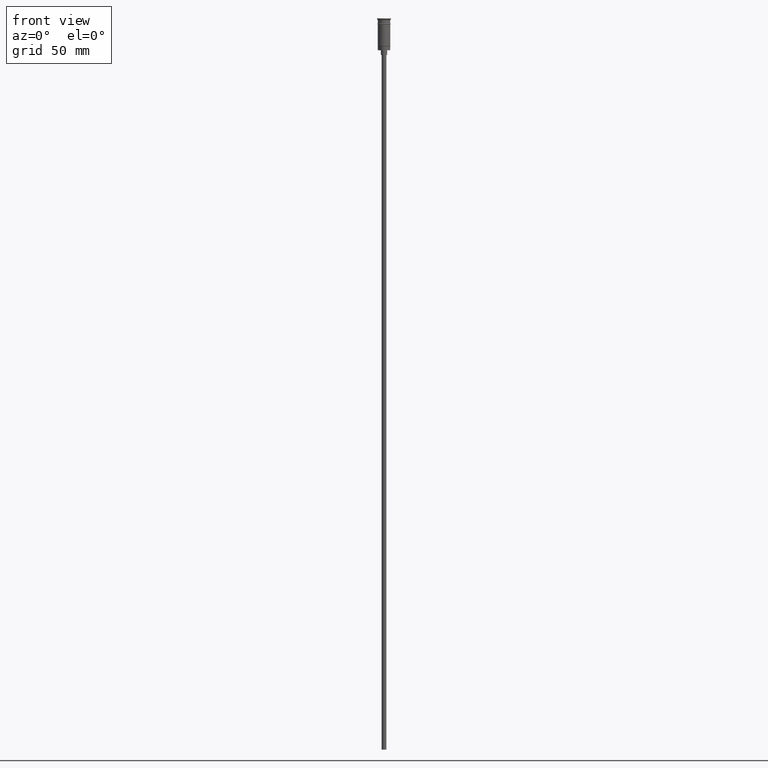
[diagram: clean part render]
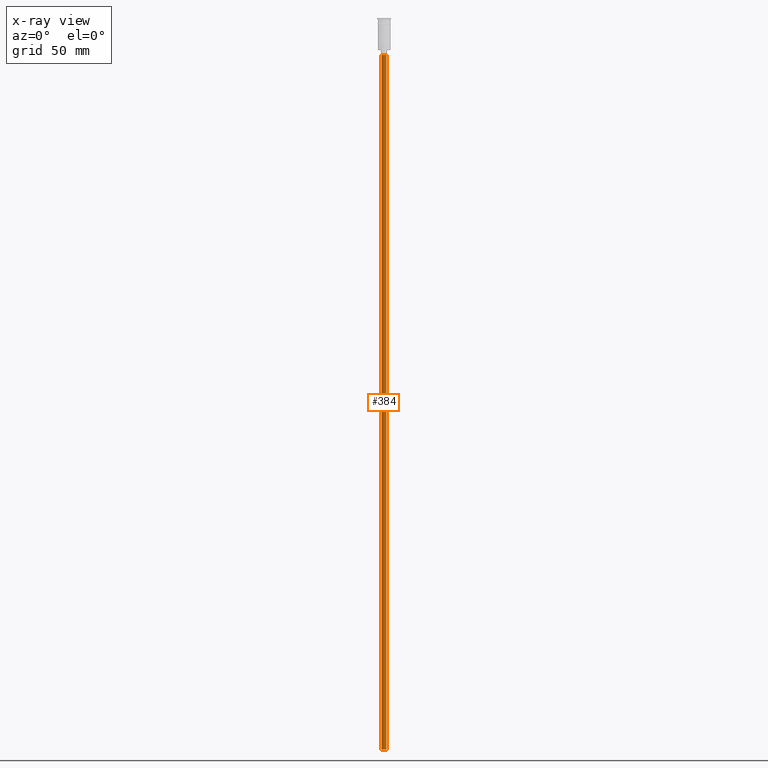
[diagram: x-ray — body ghosted, one internal face saturated and labeled with its STEP entity id]
A machine part, front view, then the same camera in x-ray: the body is ghosted and one INTERNAL B-rep face — a face not visible from any outside direction — is saturated and labeled: STEP entity #384.
In plain terms, the highlighted cylindrical surface (edge-blend (fillet) strip) has radius 1.5 mm, axis along (-0, -0, 1).
Its self-contained STEP definition (entity closure, byte-faithful):
#127 = DIRECTION ( 'NONE',  ( -1.000000000000000000, 0.000000000000000000, 0.000000000000000000 ) ) ;
#129 = VERTEX_POINT ( 'NONE', #1236 ) ;
#132 = VERTEX_POINT ( 'NONE', #588 ) ;
#191 = CIRCLE ( 'NONE', #972, 1.500000000000000222 ) ;
#211 = DIRECTION ( 'NONE',  ( -0.000000000000000000, -0.000000000000000000, 1.000000000000000000 ) ) ;
#218 = LINE ( 'NONE', #706, #1579 ) ;
#233 = EDGE_CURVE ( 'NONE', #1026, #132, #1148, .T. ) ;
#250 = FACE_OUTER_BOUND ( 'NONE', #668, .T. ) ;
#301 = CARTESIAN_POINT ( 'NONE',  ( 1.500000000000000222, 0.000000000000000000, -470.5000000000000568 ) ) ;
#368 = CARTESIAN_POINT ( 'NONE',  ( 0.000000000000000000, 0.000000000000000000, -23.49999999999999645 ) ) ;
#379 = DIRECTION ( 'NONE',  ( 1.000000000000000000, 0.000000000000000000, 0.000000000000000000 ) ) ;
#384 = ADVANCED_FACE ( 'NONE', ( #250 ), #629, .T. ) ;
#425 = LINE ( 'NONE', #301, #1122 ) ;
#588 = CARTESIAN_POINT ( 'NONE',  ( -1.500000000000000222, 1.836970198721030181E-16, -23.49999999999999645 ) ) ;
#625 = CARTESIAN_POINT ( 'NONE',  ( 1.500000000000000222, 0.000000000000000000, -470.5000000000000568 ) ) ;
#629 = CYLINDRICAL_SURFACE ( 'NONE', #819, 1.500000000000000222 ) ;
#668 = EDGE_LOOP ( 'NONE', ( #1490, #1392, #757, #1404 ) ) ;
#706 = CARTESIAN_POINT ( 'NONE',  ( -1.500000000000000222, 1.836970198721030181E-16, -470.5000000000000568 ) ) ;
#741 = DIRECTION ( 'NONE',  ( 0.000000000000000000, 0.000000000000000000, -1.000000000000000000 ) ) ;
#757 = ORIENTED_EDGE ( 'NONE', *, *, #1336, .T. ) ;
#779 = DIRECTION ( 'NONE',  ( -1.000000000000000000, 0.000000000000000000, 0.000000000000000000 ) ) ;
#780 = DIRECTION ( 'NONE',  ( 0.000000000000000000, 0.000000000000000000, -1.000000000000000000 ) ) ;
#806 = DIRECTION ( 'NONE',  ( -0.000000000000000000, -0.000000000000000000, 1.000000000000000000 ) ) ;
#819 = AXIS2_PLACEMENT_3D ( 'NONE', #859, #1344, #379 ) ;
#859 = CARTESIAN_POINT ( 'NONE',  ( 0.000000000000000000, 0.000000000000000000, -470.5000000000000568 ) ) ;
#883 = CARTESIAN_POINT ( 'NONE',  ( 0.000000000000000000, 0.000000000000000000, -470.5000000000000568 ) ) ;
#972 = AXIS2_PLACEMENT_3D ( 'NONE', #883, #741, #779 ) ;
#1026 = VERTEX_POINT ( 'NONE', #1586 ) ;
#1044 = VERTEX_POINT ( 'NONE', #625 ) ;
#1122 = VECTOR ( 'NONE', #806, 1000.000000000000000 ) ;
#1148 = CIRCLE ( 'NONE', #1347, 1.500000000000000222 ) ;
#1236 = CARTESIAN_POINT ( 'NONE',  ( -1.500000000000000222, 1.836970198721030181E-16, -470.5000000000000568 ) ) ;
#1336 = EDGE_CURVE ( 'NONE', #1044, #1026, #425, .T. ) ;
#1344 = DIRECTION ( 'NONE',  ( -0.000000000000000000, -0.000000000000000000, 1.000000000000000000 ) ) ;
#1347 = AXIS2_PLACEMENT_3D ( 'NONE', #368, #780, #127 ) ;
#1392 = ORIENTED_EDGE ( 'NONE', *, *, #1535, .F. ) ;
#1404 = ORIENTED_EDGE ( 'NONE', *, *, #233, .T. ) ;
#1481 = EDGE_CURVE ( 'NONE', #129, #132, #218, .T. ) ;
#1490 = ORIENTED_EDGE ( 'NONE', *, *, #1481, .F. ) ;
#1535 = EDGE_CURVE ( 'NONE', #1044, #129, #191, .T. ) ;
#1579 = VECTOR ( 'NONE', #211, 1000.000000000000000 ) ;
#1586 = CARTESIAN_POINT ( 'NONE',  ( 1.500000000000000222, 0.000000000000000000, -23.49999999999999645 ) ) ;